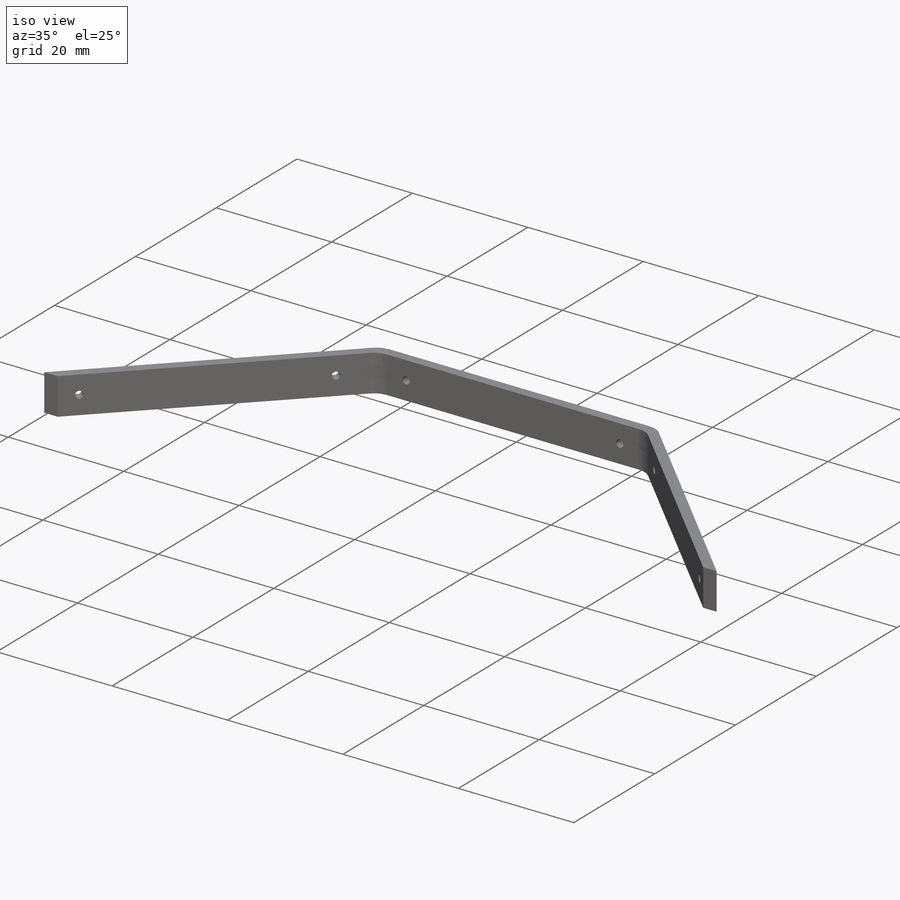
[diagram: iso view]
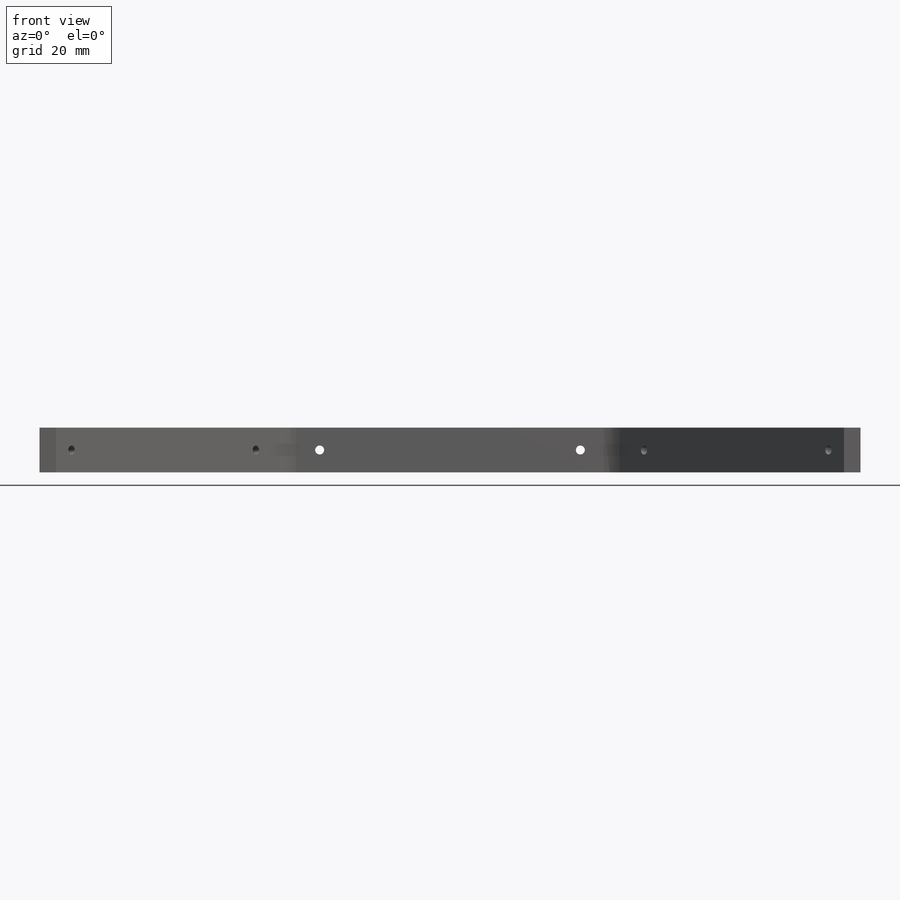
[diagram: front view]
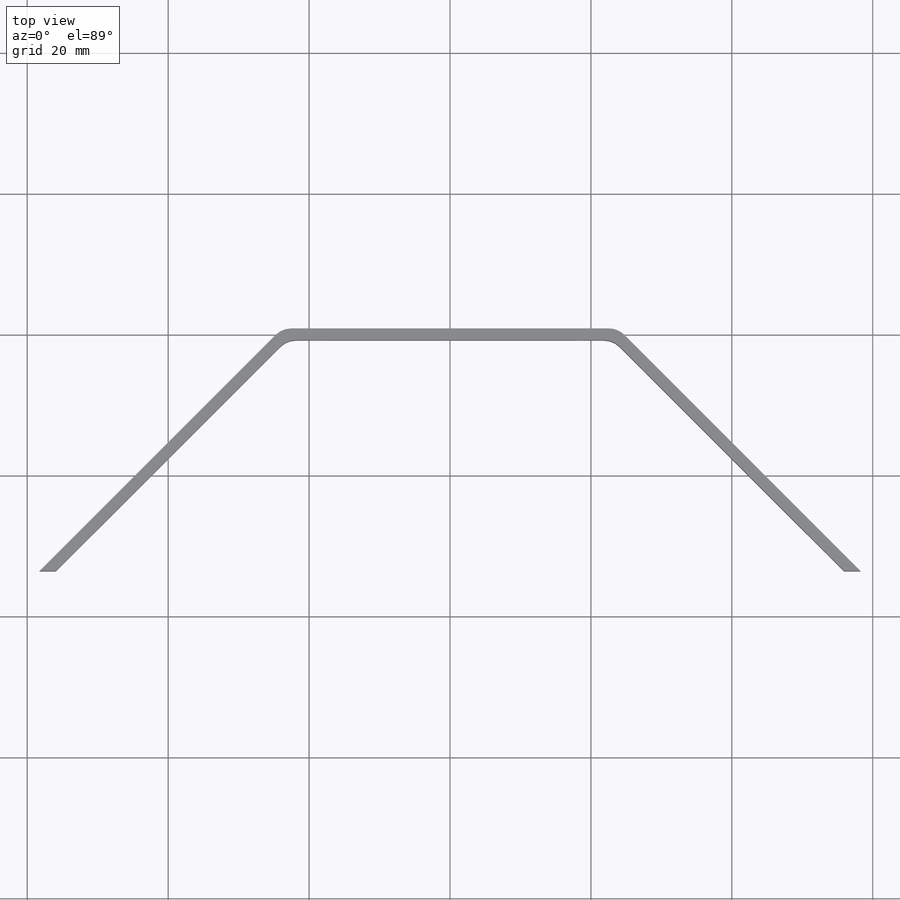
[diagram: top view]
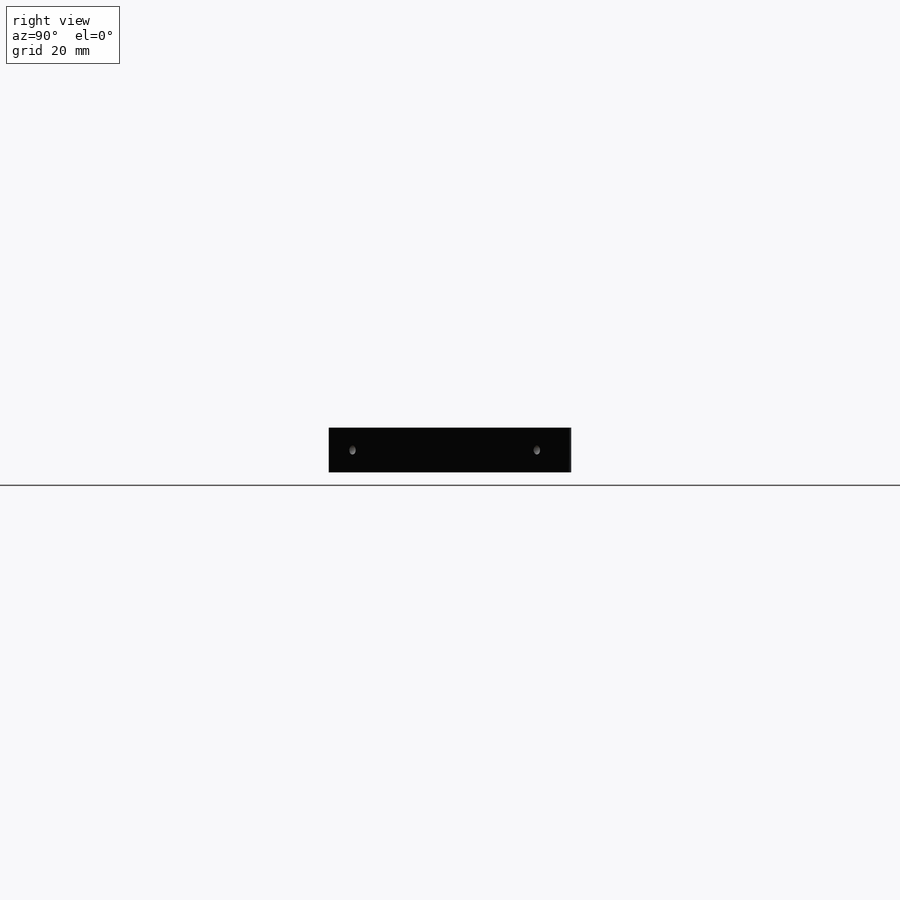
[diagram: right view]
SOLIDWORKS PART (.sldprt)
format: sldprt  version: not decoded by parser v0  size: 189,952 bytes
history: native  units: mm
features: sketch x8, cut_extrude x3, mirror x2, fillet x2, material x1, sweep x1, sheet_metal_op x1 + 1 further entry (+15 scaffold rows collapsed; 1 parser-record rows omitted)
feature tree (35):
  scaffold x15  (default folders/planes/origin — collapsed)
  material  "Material <not specified>"
  sketch  "Sketch1"  dims[c1.D1=36.83mm c1.D2=50.8mm c1.D3=50.8mm c2.D3=135.0deg c2.D4=127.0mm c2.D2=120.65mm]
  sketch  "Sketch2"  dims[D1=6.35mm D2=1.651mm]
  sweep  "Sweep1"
  mirror  "Mirror1"
  fillet  "Fillet1"  Radius=3.175mm
  fillet  "Fillet2"  Radius=3.175mm
  sketch  "Sketch3"  dims[D1=34.417mm]
  cut_extrude  "Extrude1"  [1 undecoded]
  sketch  "Sketch4"  dims[D1=1.27mm D2=37.0mm]
  cut_extrude  "Extrude2"  [1 undecoded]
  mirror  "Mirror2"
  sketch  "Sketch5"  dims[c1.D1=~4.294692mm c1.D2=1.27mm c2.D1=37.0mm]
  cut_extrude  "Extrude3"  [1 undecoded]
  sheet_metal_op  "Sheet-Metal1"  Thickness=1.651mm
  sketch  "Sharp-Sketch1"  dims[D1=0.0mm]
  sketch  "Flat-Sketch1"  dims[D1=0.0mm]
  "Flat-Pattern1"
  sketch  "Bend-Lines1"
  parser-record x1  (decoder bookkeeping rows leaked as tree rows — omitted from the tree; the rows remain in map.json)
decode coverage: 10 of 17 modeling features carry decoded parameters; 1 rows unclassified (native names shown)
note: ~ marks probable driven/reference dimensions
note: 3 parameter values undecoded
summary: no parameter record found for 3 features
note: suppression state not decoded; provenance and decode notes live in map.json
